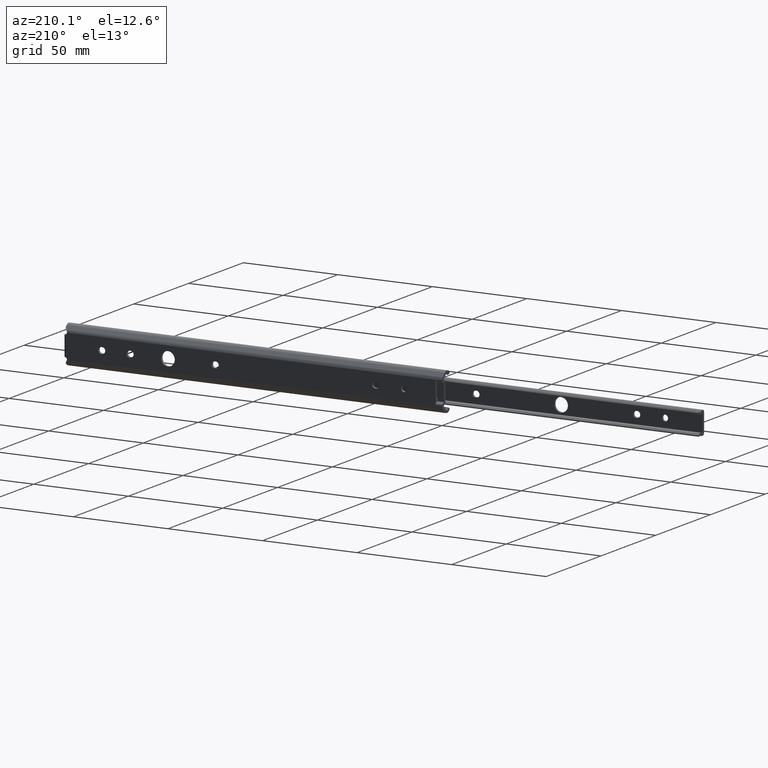
[diagram: clean part render]
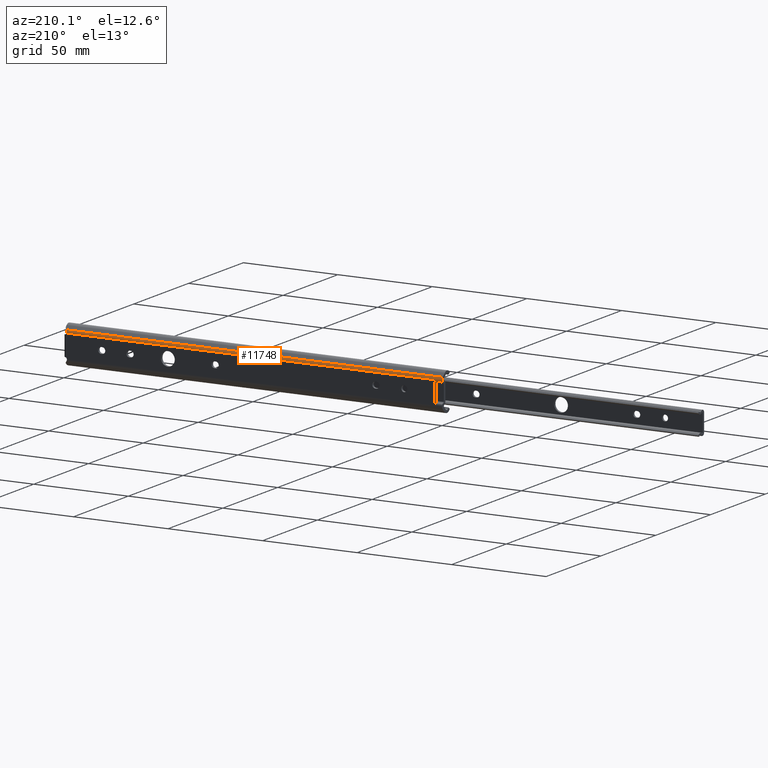
[diagram: same view with one face highlighted and labeled with its STEP entity id]
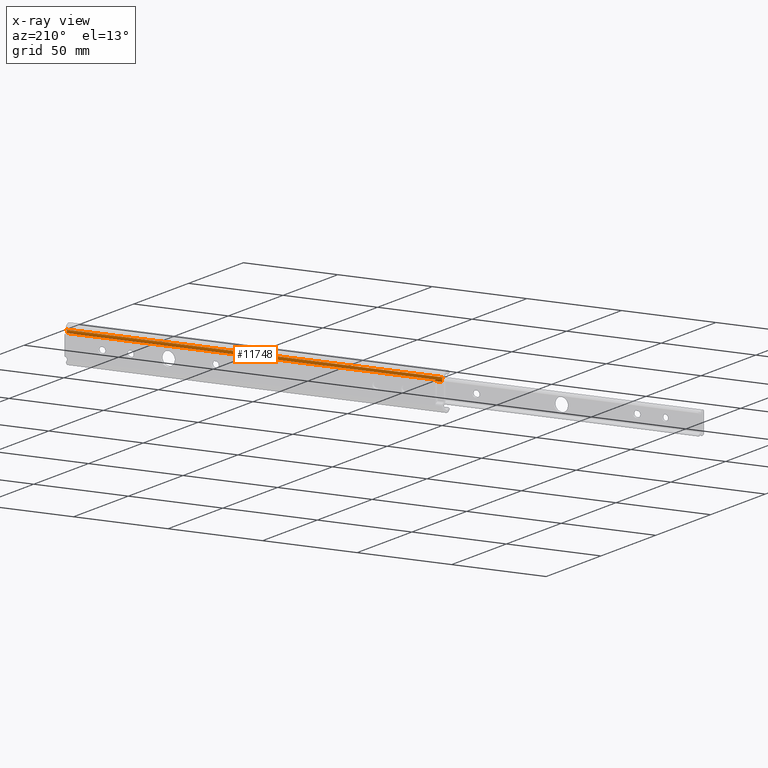
[diagram: x-ray of the same camera — body ghosted, the highlighted face saturated]
A machine part, auxiliary view. The second image highlights one B-rep face of the part: STEP entity #11748.
The next image is the same camera in x-ray: the body ghosted, the highlighted face saturated — about 0% of this face is hidden behind the body in this view.
In plain terms, the highlighted face is a freeform B-spline surface patch.
Its self-contained STEP definition (entity closure, byte-faithful):
#9891=CARTESIAN_POINT('',(199.159981460542500,-0.607033000000000,7.474195000000000));
#9892=VERTEX_POINT('',#9891);
#9914=CARTESIAN_POINT('',(198.692893000000000,-0.240434790049970,7.007106999999910));
#9915=VERTEX_POINT('',#9914);
#9921=CARTESIAN_POINT('',(199.159981460542500,-0.607033000000000,7.474195000000000));
#9922=CARTESIAN_POINT('',(198.955435057719880,-0.386787667550264,7.269648798857467));
#9923=CARTESIAN_POINT('',(198.692892999999910,-0.240434790050057,7.007107000000037));
#9931=(BOUNDED_CURVE()B_SPLINE_CURVE(2,(#9921,#9922,#9923),.UNSPECIFIED.,.F.,.U.)CURVE()GEOMETRIC_REPRESENTATION_ITEM()QUASI_UNIFORM_CURVE()RATIONAL_B_SPLINE_CURVE((1.0,0.987716602345867,1.0))REPRESENTATION_ITEM(''));
#9932=EDGE_CURVE('',#9892,#9915,#9931,.T.);
#10076=CARTESIAN_POINT('',(198.424053688014000,0.0,6.081989000000000));
#10077=VERTEX_POINT('',#10076);
#10091=CARTESIAN_POINT('',(198.692893000000000,-0.240434790049970,7.007106999999910));
#10092=CARTESIAN_POINT('',(198.635308591851810,-0.208334357648479,6.949522154224905));
#10093=CARTESIAN_POINT('',(198.585646239561700,-0.176866021227071,6.886065199055923));
#10094=CARTESIAN_POINT('',(198.522523658614890,-0.132988797780832,6.781348508339376));
#10095=CARTESIAN_POINT('',(198.503307096163100,-0.118831137091314,6.744601165504500));
#10096=CARTESIAN_POINT('',(198.469497848663510,-0.092388276857487,6.668638178323590));
#10097=CARTESIAN_POINT('',(198.455008870429110,-0.080196731699052,6.629735700686869));
#10098=CARTESIAN_POINT('',(198.430867494397600,-0.058086311827195,6.550032105657828));
#10099=CARTESIAN_POINT('',(198.421214362453900,-0.048166412853040,6.509231452712773));
#10100=CARTESIAN_POINT('',(198.407012267227910,-0.030840398691608,6.425596527161818));
#10101=CARTESIAN_POINT('',(198.402464564404310,-0.023388540235302,6.382356833473300));
#10102=CARTESIAN_POINT('',(198.397384619991500,-0.005721537620686,6.253087603698285));
#10103=CARTESIAN_POINT('',(198.404994734728290,7.976975E-014,6.167308158984865));
#10104=CARTESIAN_POINT('',(198.424053688014000,8.012390E-014,6.081989000000008));
#10105=B_SPLINE_CURVE_WITH_KNOTS('',3,(#10091,#10092,#10093,#10094,#10095,#10096,#10097,#10098,#10099,#10100,#10101,#10102,#10103,#10104),.UNSPECIFIED.,.F.,.U.,(4,2,2,2,2,2,4),(0.0,0.249999999999999,0.374999999999999,0.499999999999999,0.624999999999999,0.749999999999999,1.0),.UNSPECIFIED.);
#10106=EDGE_CURVE('',#9915,#10077,#10105,.T.);
#10544=CARTESIAN_POINT('',(0.0,-0.607033000000087,7.474195000000000));
#10545=VERTEX_POINT('',#10544);
#10551=CARTESIAN_POINT('',(0.0,-0.145791406205077,5.352090233419310));
#10552=VERTEX_POINT('',#10551);
#10553=CARTESIAN_POINT('',(0.0,-0.145791406205076,5.352090233419310));
#10554=CARTESIAN_POINT('',(0.0,0.362522454901367,6.573750803796116));
#10555=CARTESIAN_POINT('',(0.0,-0.607033000000087,7.474195000000000));
#10563=(BOUNDED_CURVE()B_SPLINE_CURVE(2,(#10553,#10554,#10555),.UNSPECIFIED.,.F.,.U.)CURVE()GEOMETRIC_REPRESENTATION_ITEM()QUASI_UNIFORM_CURVE()RATIONAL_B_SPLINE_CURVE((1.0,0.820610894237574,1.0))REPRESENTATION_ITEM(''));
#10564=EDGE_CURVE('',#10552,#10545,#10563,.T.);
#11277=CARTESIAN_POINT('',(3.499999999999950,-0.145791406205077,5.352090233419310));
#11278=VERTEX_POINT('',#11277);
#11279=CARTESIAN_POINT('',(3.499999999999950,-0.145791406205077,5.352090233419310));
#11280=CARTESIAN_POINT('',(0.0,-0.145791406205077,5.352090233419310));
#11281=QUASI_UNIFORM_CURVE('',1,(#11279,#11280),.UNSPECIFIED.,.F.,.U.);
#11282=EDGE_CURVE('',#11278,#10552,#11281,.T.);
#11658=CARTESIAN_POINT('',(3.499999999999950,-9.085614E-014,6.081989000000000));
#11659=VERTEX_POINT('',#11658);
#11665=CARTESIAN_POINT('',(198.424053688014000,0.0,6.081989000000000));
#11666=CARTESIAN_POINT('',(3.499999999999950,-9.085614E-014,6.081989000000000));
#11667=QUASI_UNIFORM_CURVE('',1,(#11665,#11666),.UNSPECIFIED.,.F.,.U.);
#11668=EDGE_CURVE('',#10077,#11659,#11667,.T.);
#11709=CARTESIAN_POINT('',(204.138980997056000,-0.169473957506805,5.297591386379768));
#11710=CARTESIAN_POINT('',(-5.103474524926412,-0.169473957506805,5.297591386379768));
#11711=CARTESIAN_POINT('',(204.138980997056050,0.429877855324099,6.619872207623442));
#11712=CARTESIAN_POINT('',(-5.103474524926413,0.429877855324099,6.619872207623442));
#11713=CARTESIAN_POINT('',(204.138980997056000,-0.688457085877268,7.545602257400732));
#11714=CARTESIAN_POINT('',(-5.103474524926412,-0.688457085877268,7.545602257400732));
#11722=(BOUNDED_SURFACE()B_SPLINE_SURFACE(1,2,((#11709,#11711,#11713),(#11710,#11712,#11714)),.UNSPECIFIED.,.F.,.F.,.U.)B_SPLINE_SURFACE_WITH_KNOTS((2,2),(3,3),(0.0,209.242455521982410),(0.0,2.571203056009154),.UNSPECIFIED.)GEOMETRIC_REPRESENTATION_ITEM()RATIONAL_B_SPLINE_SURFACE(((1.0,0.791704257874361,0.992741695858998),(1.0,0.791704257874361,0.992741695858998)))REPRESENTATION_ITEM('')SURFACE());
#11723=CARTESIAN_POINT('',(199.159981460542500,-0.607033000000000,7.474195000000000));
#11724=CARTESIAN_POINT('',(0.0,-0.607033000000087,7.474195000000000));
#11725=QUASI_UNIFORM_CURVE('',1,(#11723,#11724),.UNSPECIFIED.,.F.,.U.);
#11726=EDGE_CURVE('',#9892,#10545,#11725,.T.);
#11727=ORIENTED_EDGE('',*,*,#11726,.F.);
#11728=ORIENTED_EDGE('',*,*,#9932,.T.);
#11729=ORIENTED_EDGE('',*,*,#10106,.T.);
#11730=ORIENTED_EDGE('',*,*,#11668,.T.);
#11731=CARTESIAN_POINT('',(3.499999999999950,-0.145791406205076,5.352090233419310));
#11732=CARTESIAN_POINT('',(3.499999999999950,-5.009014E-014,5.702479286499200));
#11733=CARTESIAN_POINT('',(3.499999999999950,-8.998878E-014,6.081989000000000));
#11741=(BOUNDED_CURVE()B_SPLINE_CURVE(2,(#11731,#11732,#11733),.UNSPECIFIED.,.F.,.U.)CURVE()GEOMETRIC_REPRESENTATION_ITEM()QUASI_UNIFORM_CURVE()RATIONAL_B_SPLINE_CURVE((1.0,0.980629308389440,1.0))REPRESENTATION_ITEM(''));
#11742=EDGE_CURVE('',#11278,#11659,#11741,.T.);
#11743=ORIENTED_EDGE('',*,*,#11742,.F.);
#11744=ORIENTED_EDGE('',*,*,#11282,.T.);
#11745=ORIENTED_EDGE('',*,*,#10564,.T.);
#11746=EDGE_LOOP('',(#11727,#11728,#11729,#11730,#11743,#11744,#11745));
#11747=FACE_OUTER_BOUND('',#11746,.T.);
#11748=ADVANCED_FACE('',(#11747),#11722,.T.);